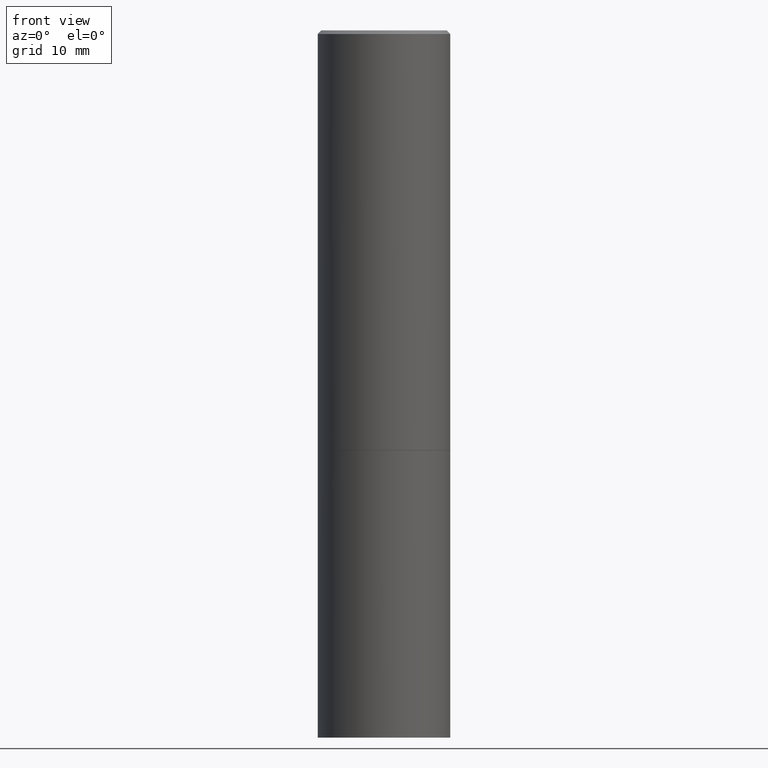
[diagram: clean part render]
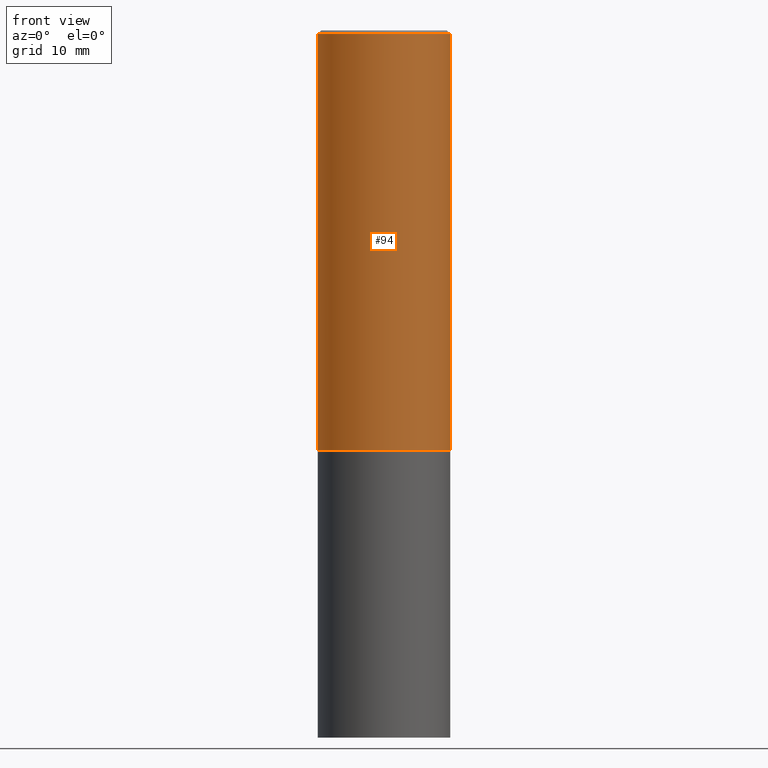
[diagram: same view with one face highlighted and labeled with its STEP entity id]
A machine part, front view. The second image highlights one B-rep face of the part: STEP entity #94.
In plain terms, the highlighted cylindrical surface (partial cylindrical patch) has radius 9.525 mm, axis along (-0, 0, 1).
Its self-contained STEP definition (entity closure, byte-faithful):
#22 = FACE_OUTER_BOUND ( 'NONE', #209, .T. ) ;
#25 = CIRCLE ( 'NONE', #140, 0.3749999999999997780 ) ;
#31 = VERTEX_POINT ( 'NONE', #280 ) ;
#51 = DIRECTION ( 'NONE',  ( 1.000000000000000000, -6.982962677686266711E-15, 0.000000000000000000 ) ) ;
#54 = DIRECTION ( 'NONE',  ( -2.445468806185136877E-29, 3.491481338843145188E-15, 1.000000000000000000 ) ) ;
#87 = EDGE_CURVE ( 'NONE', #31, #146, #189, .T. ) ;
#94 = ADVANCED_FACE ( 'NONE', ( #22 ), #328, .T. ) ;
#97 = CARTESIAN_POINT ( 'NONE',  ( 0.3749999999999997780, -2.642516375941186056E-15, -0.02000000000000008021 ) ) ;
#101 = CARTESIAN_POINT ( 'NONE',  ( 4.890937612370293302E-31, -6.982962677686318726E-17, -0.02000000000000008021 ) ) ;
#105 = EDGE_CURVE ( 'NONE', #223, #381, #233, .T. ) ;
#131 = DIRECTION ( 'NONE',  ( -2.445468806185136597E-29, 3.491481338843145583E-15, 1.000000000000000000 ) ) ;
#140 = AXIS2_PLACEMENT_3D ( 'NONE', #101, #267, #367 ) ;
#145 = ORIENTED_EDGE ( 'NONE', *, *, #105, .T. ) ;
#146 = VERTEX_POINT ( 'NONE', #262 ) ;
#189 = LINE ( 'NONE', #427, #260 ) ;
#209 = EDGE_LOOP ( 'NONE', ( #271, #384, #145, #304 ) ) ;
#220 = CARTESIAN_POINT ( 'NONE',  ( 0.3750000000000000555, -1.090738770254597870E-14, -2.373999999999999666 ) ) ;
#223 = VERTEX_POINT ( 'NONE', #220 ) ;
#233 = LINE ( 'NONE', #317, #416 ) ;
#260 = VECTOR ( 'NONE', #290, 39.37007874015748143 ) ;
#262 = CARTESIAN_POINT ( 'NONE',  ( -0.3749999999999997780, 2.548781377355484746E-15, -0.02000000000000008021 ) ) ;
#267 = DIRECTION ( 'NONE',  ( -2.445468806185136597E-29, 3.491481338843145583E-15, 1.000000000000000000 ) ) ;
#271 = ORIENTED_EDGE ( 'NONE', *, *, #87, .F. ) ;
#280 = CARTESIAN_POINT ( 'NONE',  ( -0.3750000000000000555, -1.514767903494867141E-15, -2.373999999999999666 ) ) ;
#289 = EDGE_CURVE ( 'NONE', #31, #223, #330, .T. ) ;
#290 = DIRECTION ( 'NONE',  ( -2.445468806185136877E-29, 3.491481338843145188E-15, 1.000000000000000000 ) ) ;
#292 = CARTESIAN_POINT ( 'NONE',  ( 0.000000000000000000, 0.000000000000000000, 0.000000000000000000 ) ) ;
#296 = EDGE_CURVE ( 'NONE', #146, #381, #25, .T. ) ;
#304 = ORIENTED_EDGE ( 'NONE', *, *, #296, .F. ) ;
#309 = AXIS2_PLACEMENT_3D ( 'NONE', #434, #131, #51 ) ;
#317 = CARTESIAN_POINT ( 'NONE',  ( 0.3749999999999998890, -2.618611004132349228E-15, 1.828566290923475362E-29 ) ) ;
#328 = CYLINDRICAL_SURFACE ( 'NONE', #364, 0.3749999999999998890 ) ;
#330 = CIRCLE ( 'NONE', #309, 0.3750000000000000555 ) ;
#359 = DIRECTION ( 'NONE',  ( 1.000000000000000000, -6.982962677686266711E-15, 4.876176775795935793E-29 ) ) ;
#364 = AXIS2_PLACEMENT_3D ( 'NONE', #292, #389, #359 ) ;
#367 = DIRECTION ( 'NONE',  ( 1.000000000000000000, -6.982962677686265922E-15, 0.000000000000000000 ) ) ;
#381 = VERTEX_POINT ( 'NONE', #97 ) ;
#384 = ORIENTED_EDGE ( 'NONE', *, *, #289, .T. ) ;
#389 = DIRECTION ( 'NONE',  ( -2.445468806185136597E-29, 3.491481338843145583E-15, 1.000000000000000000 ) ) ;
#416 = VECTOR ( 'NONE', #54, 39.37007874015748143 ) ;
#427 = CARTESIAN_POINT ( 'NONE',  ( -0.3749999999999998890, 2.664535259100374908E-15, -1.844600658845589038E-29 ) ) ;
#434 = CARTESIAN_POINT ( 'NONE',  ( 5.805542945883513814E-29, -8.288776698413627111E-15, -2.373999999999999666 ) ) ;